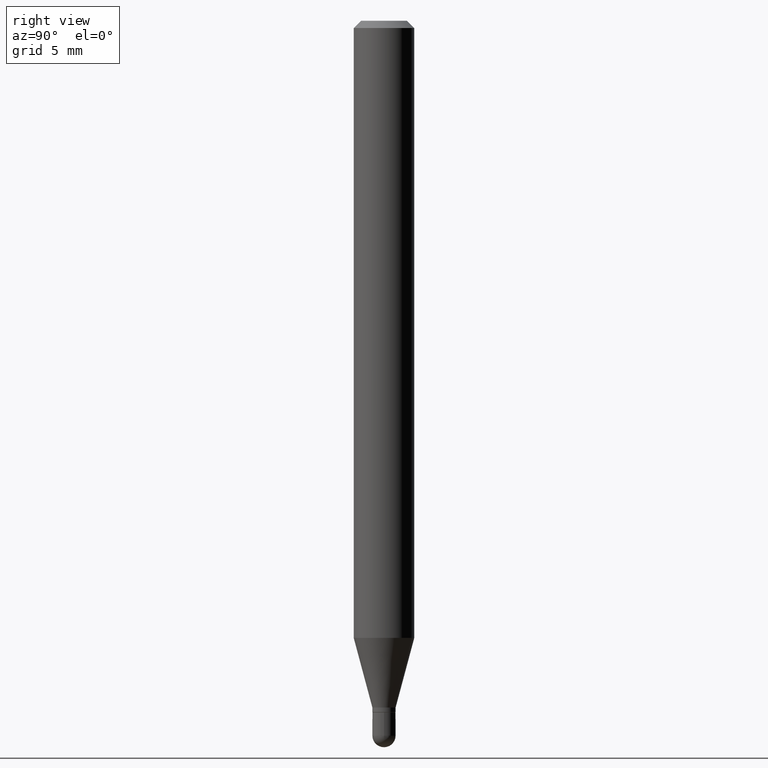
[diagram: clean part render]
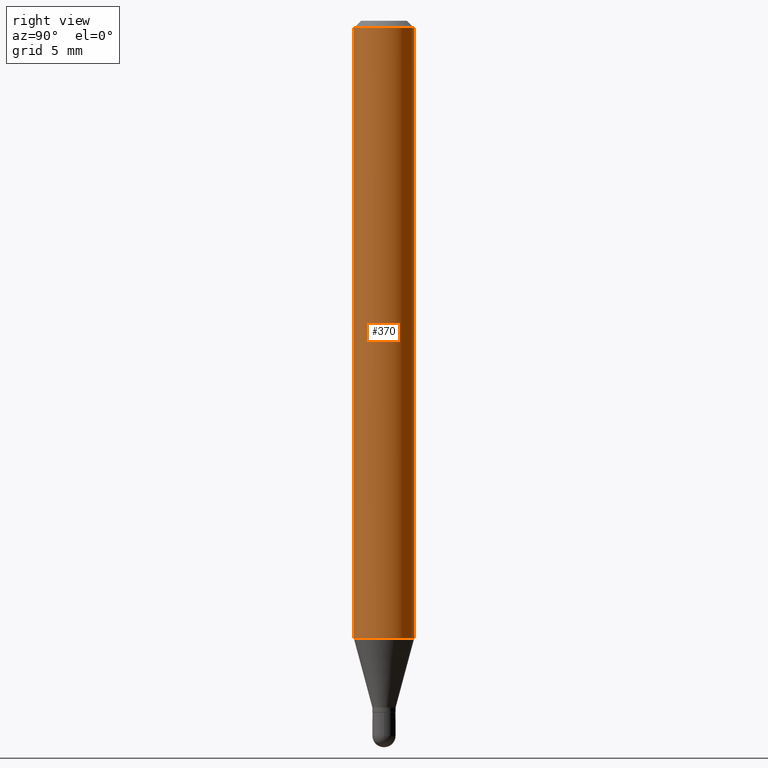
[diagram: same view with one face highlighted and labeled with its STEP entity id]
A machine part, right view. The second image highlights one B-rep face of the part: STEP entity #370.
In plain terms, the highlighted cylindrical surface (edge-blend (fillet) strip) has radius 1.5875 mm, axis along (-0, 0, 1).
Its self-contained STEP definition (entity closure, byte-faithful):
#29 = DIRECTION ( 'NONE',  ( -2.445481708128512584E-29, 3.491462862525897925E-15, 1.000000000000000000 ) ) ;
#31 = ORIENTED_EDGE ( 'NONE', *, *, #287, .T. ) ;
#39 = DIRECTION ( 'NONE',  ( -2.445481708128512584E-29, 3.491462862525897925E-15, 1.000000000000000000 ) ) ;
#51 = DIRECTION ( 'NONE',  ( -2.445481708128512584E-29, 3.491462862525897925E-15, 1.000000000000000000 ) ) ;
#89 = LINE ( 'NONE', #401, #144 ) ;
#101 = VERTEX_POINT ( 'NONE', #148 ) ;
#121 = CYLINDRICAL_SURFACE ( 'NONE', #235, 0.06250000000000000000 ) ;
#144 = VECTOR ( 'NONE', #51, 39.37007874015748143 ) ;
#148 = CARTESIAN_POINT ( 'NONE',  ( -4.364351673553605587E-16, -0.06250000000000446865, -1.274316043908598095 ) ) ;
#173 = VERTEX_POINT ( 'NONE', #229 ) ;
#180 = CIRCLE ( 'NONE', #390, 0.06250000000000000000 ) ;
#192 = EDGE_CURVE ( 'NONE', #227, #173, #489, .T. ) ;
#195 = EDGE_CURVE ( 'NONE', #101, #227, #470, .T. ) ;
#203 = CARTESIAN_POINT ( 'NONE',  ( 3.116316575753167812E-29, -4.449227142427792447E-15, -1.274316043908598539 ) ) ;
#204 = DIRECTION ( 'NONE',  ( -2.445481708128512584E-29, 3.491462862525897925E-15, 1.000000000000000000 ) ) ;
#209 = DIRECTION ( 'NONE',  ( -6.982962677686265922E-15, -1.000000000000000000, 3.491462862525897925E-15 ) ) ;
#227 = VERTEX_POINT ( 'NONE', #472 ) ;
#229 = CARTESIAN_POINT ( 'NONE',  ( 4.440892098500939734E-16, 0.06249999999999995143, -0.01500000000000022669 ) ) ;
#233 = AXIS2_PLACEMENT_3D ( 'NONE', #347, #346, #386 ) ;
#235 = AXIS2_PLACEMENT_3D ( 'NONE', #411, #204, #209 ) ;
#253 = VERTEX_POINT ( 'NONE', #273 ) ;
#273 = CARTESIAN_POINT ( 'NONE',  ( 4.440892098500935790E-16, 0.06249999999999552441, -1.274316043908598761 ) ) ;
#287 = EDGE_CURVE ( 'NONE', #253, #173, #89, .T. ) ;
#302 = VECTOR ( 'NONE', #39, 39.37007874015748143 ) ;
#315 = CARTESIAN_POINT ( 'NONE',  ( -4.364351673553916201E-16, -0.06250000000000000000, 2.182164289078686203E-16 ) ) ;
#336 = ORIENTED_EDGE ( 'NONE', *, *, #195, .F. ) ;
#339 = EDGE_CURVE ( 'NONE', #101, #253, #180, .T. ) ;
#346 = DIRECTION ( 'NONE',  ( -2.445481708128512584E-29, 3.491462862525897925E-15, 1.000000000000000000 ) ) ;
#347 = CARTESIAN_POINT ( 'NONE',  ( 3.668222562192771468E-31, -5.237194293788850043E-17, -0.01500000000000000812 ) ) ;
#370 = ADVANCED_FACE ( 'NONE', ( #404 ), #121, .T. ) ;
#371 = DIRECTION ( 'NONE',  ( -6.982962677686265922E-15, -1.000000000000000000, 4.370956789862821150E-15 ) ) ;
#386 = DIRECTION ( 'NONE',  ( -6.982962677686265922E-15, -1.000000000000000000, 3.483106191921935554E-15 ) ) ;
#390 = AXIS2_PLACEMENT_3D ( 'NONE', #203, #29, #371 ) ;
#401 = CARTESIAN_POINT ( 'NONE',  ( 4.440892098500625669E-16, 0.06250000000000000000, -2.182164289078686203E-16 ) ) ;
#404 = FACE_OUTER_BOUND ( 'NONE', #453, .T. ) ;
#405 = ORIENTED_EDGE ( 'NONE', *, *, #192, .F. ) ;
#411 = CARTESIAN_POINT ( 'NONE',  ( 0.000000000000000000, 0.000000000000000000, 0.000000000000000000 ) ) ;
#453 = EDGE_LOOP ( 'NONE', ( #503, #31, #405, #336 ) ) ;
#470 = LINE ( 'NONE', #315, #302 ) ;
#472 = CARTESIAN_POINT ( 'NONE',  ( -4.364351673553912750E-16, -0.06250000000000005551, -0.01499999999999979128 ) ) ;
#489 = CIRCLE ( 'NONE', #233, 0.06250000000000000000 ) ;
#503 = ORIENTED_EDGE ( 'NONE', *, *, #339, .T. ) ;